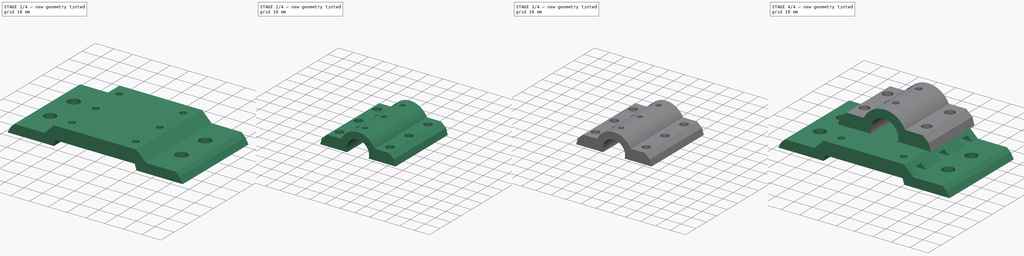
[diagram: build sequence overview — one tinted view per stage of 4, left to right]
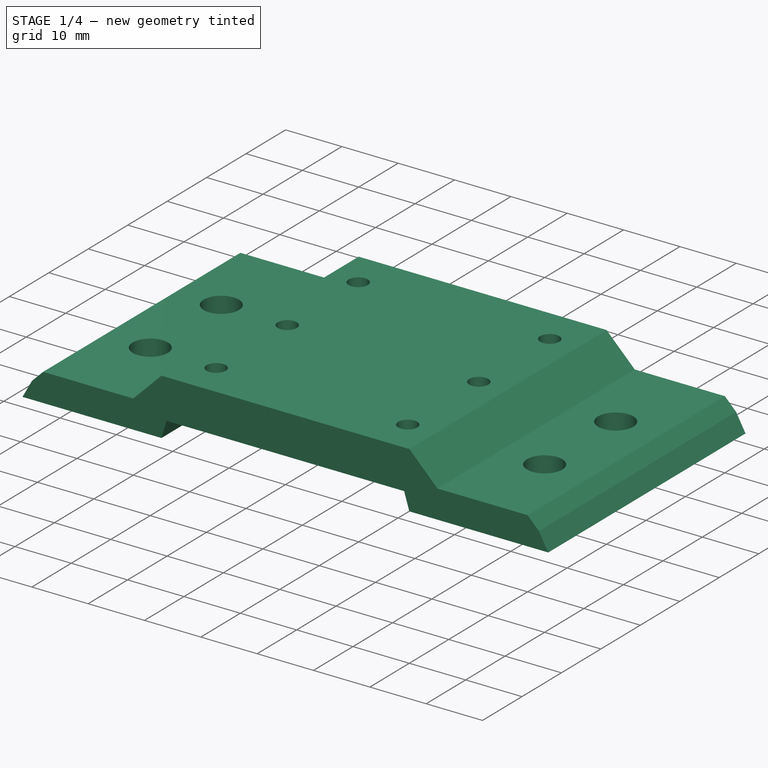
[diagram: stage 1 of 4 — iso view after this stage's code; geometry added in this stage tinted green]
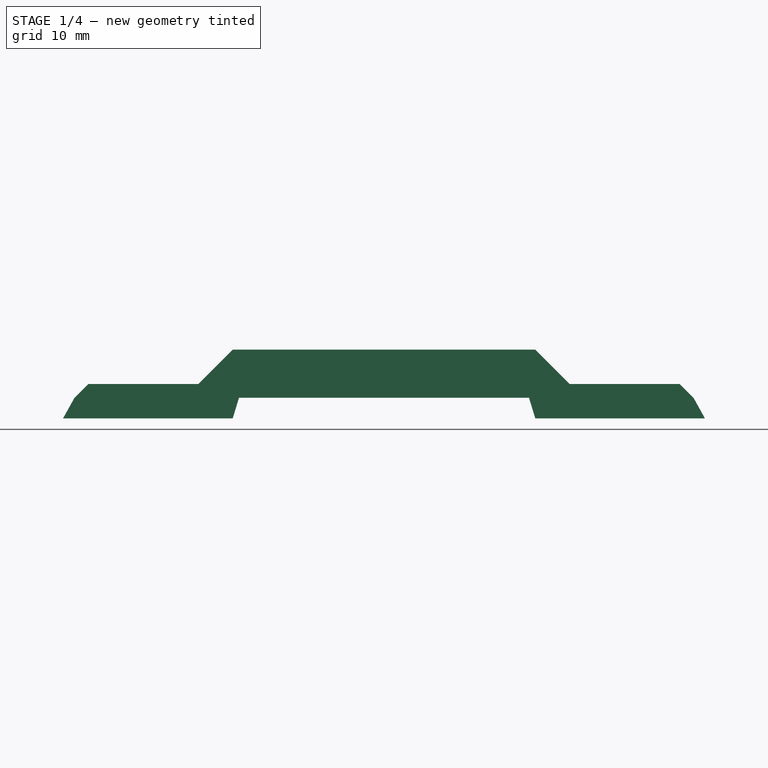
[diagram: stage 1 of 4 — front view after this stage's code; geometry added in this stage tinted green]
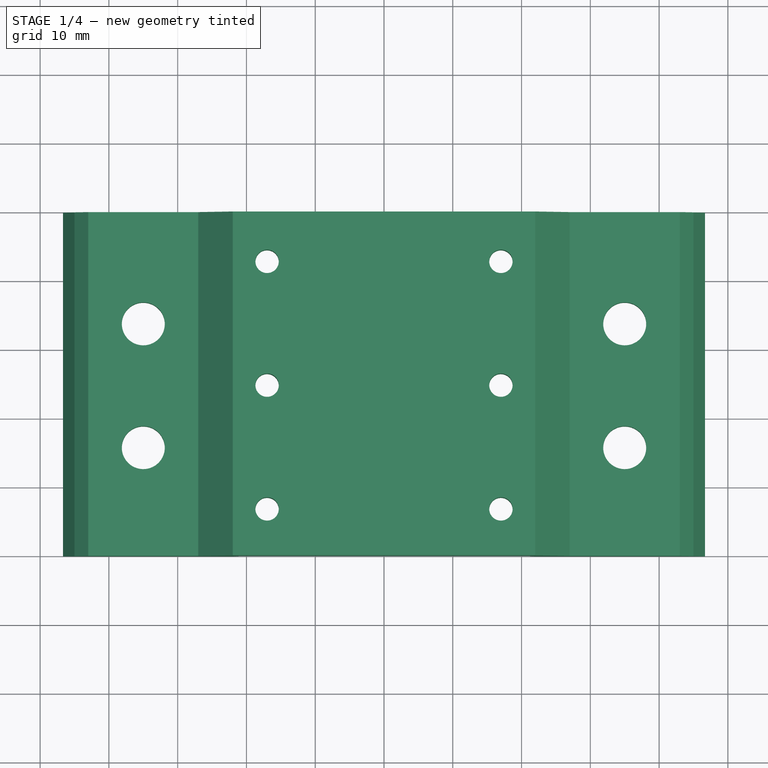
[diagram: stage 1 of 4 — top view after this stage's code; geometry added in this stage tinted green]
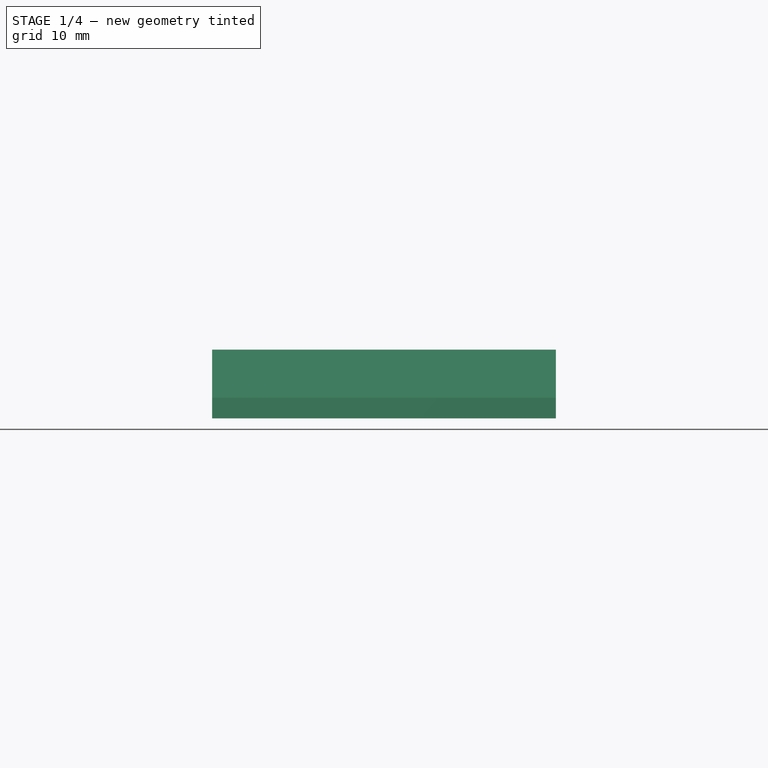
[diagram: stage 1 of 4 — right view after this stage's code; geometry added in this stage tinted green]
FCSTD DOCUMENT  (FreeCAD 0.18R16146 (Git))
Label: toolholder
License: All rights reserved
LicenseURL: http://en.wikipedia.org/wiki/All_rights_reserved
objects: Sketcher::SketchObject×11, PartDesign::Pocket×7, PartDesign::Body×5, PartDesign::FeatureBase×4, PartDesign::Pad×1
note: 36 computed .brp shape members not serialized (recipe doc carries the construction recipe); baked Part::Feature solids carry a one-line shape summary decoded from their .brp

FEATURE [Sketcher::SketchObject] Sketch005
  AttachmentOffset = pos=(0,0,5) rot=(0,0,1;0rad)
  MapMode = 5
  Placement = pos=(0,0,5) rot=(0,0,1;0rad)
  Support = -> [XY_Plane]
  sketch-geometry (49):
    g0: LineSegment StartX=-15.3 StartY=-4.30551 StartZ=0 EndX=-18.7 EndY=-4.30551 EndZ=0
    g1: LineSegment StartX=-18.7 StartY=-10.1945 StartZ=0 EndX=-15.3 EndY=-10.1945 EndZ=0
    g2: LineSegment StartX=-15.3 StartY=-10.1945 StartZ=0 EndX=-13.6 EndY=-7.25 EndZ=0
    g3: LineSegment StartX=-13.6 StartY=-7.25 StartZ=0 EndX=-15.3 EndY=-4.30551 EndZ=0
    g4: Circle [constr] CenterX=-17 CenterY=-7.25 CenterZ=0 NormalX=0 NormalY=0 NormalZ=1 AngleXU=0 Radius=3.4
    g5: LineSegment StartX=-13.6 StartY=-25.25 StartZ=0 EndX=-15.3 EndY=-22.3055 EndZ=0
    g6: LineSegment StartX=-15.3 StartY=-22.3055 StartZ=0 EndX=-18.7 EndY=-22.3055 EndZ=0
    g7: LineSegment StartX=-18.7 StartY=-28.1945 StartZ=0 EndX=-15.3 EndY=-28.1945 EndZ=0
    g8: LineSegment StartX=-15.3 StartY=-28.1945 StartZ=0 EndX=-13.6 EndY=-25.25 EndZ=0
    g9: Circle [constr] CenterX=-17 CenterY=-25.25 CenterZ=0 NormalX=0 NormalY=0 NormalZ=1 AngleXU=0 Radius=3.4
    g10: LineSegment StartX=-13.6 StartY=-43.25 StartZ=0 EndX=-15.3 EndY=-40.3055 EndZ=0
    g11: LineSegment StartX=-15.3 StartY=-40.3055 StartZ=0 EndX=-18.7 EndY=-40.3055 EndZ=0
    g12: LineSegment StartX=-18.7 StartY=-46.1945 StartZ=0 EndX=-15.3 EndY=-46.1945 EndZ=0
    g13: LineSegment StartX=-15.3 StartY=-46.1945 StartZ=0 EndX=-13.6 EndY=-43.25 EndZ=0
    g14: Circle [constr] CenterX=-17 CenterY=-43.25 CenterZ=0 NormalX=0 NormalY=0 NormalZ=1 AngleXU=0 Radius=3.4
    g15: LineSegment StartX=13.6 StartY=-7.25 StartZ=0 EndX=15.3 EndY=-10.1945 EndZ=0
    g16: LineSegment StartX=15.3 StartY=-10.1945 StartZ=0 EndX=18.7 EndY=-10.1945 EndZ=0
    g17: LineSegment StartX=18.7 StartY=-4.30551 StartZ=0 EndX=15.3 EndY=-4.30551 EndZ=0
    g18: LineSegment StartX=15.3 StartY=-4.30551 StartZ=0 EndX=13.6 EndY=-7.25 EndZ=0
    g19: Circle [constr] CenterX=17 CenterY=-7.25 CenterZ=0 NormalX=0 NormalY=0 NormalZ=1 AngleXU=0 Radius=3.4
    g20: LineSegment StartX=13.6 StartY=-25.25 StartZ=0 EndX=15.3 EndY=-28.1945 EndZ=0
    g21: LineSegment StartX=15.3 StartY=-28.1945 StartZ=0 EndX=18.7 EndY=-28.1945 EndZ=0
    g22: LineSegment StartX=18.7 StartY=-22.3055 StartZ=0 EndX=15.3 EndY=-22.3055 EndZ=0
    g23: LineSegment StartX=15.3 StartY=-22.3055 StartZ=0 EndX=13.6 EndY=-25.25 EndZ=0
    g24: Circle [constr] CenterX=17 CenterY=-25.25 CenterZ=0 NormalX=0 NormalY=0 NormalZ=1 AngleXU=0 Radius=3.4
    g25: LineSegment StartX=13.6 StartY=-43.25 StartZ=0 EndX=15.3 EndY=-46.1945 EndZ=0
    g26: LineSegment StartX=15.3 StartY=-46.1945 StartZ=0 EndX=18.7 EndY=-46.1945 EndZ=0
    g27: LineSegment StartX=18.7 StartY=-40.3055 StartZ=0 EndX=15.3 EndY=-40.3055 EndZ=0
    g28: LineSegment StartX=15.3 StartY=-40.3055 StartZ=0 EndX=13.6 EndY=-43.25 EndZ=0
    g29: Circle [constr] CenterX=17 CenterY=-43.25 CenterZ=0 NormalX=0 NormalY=0 NormalZ=1 AngleXU=0 Radius=3.4
    g30: GeomPoint X=0 Y=-25.25 Z=0
    g31: LineSegment StartX=-18.7 StartY=-4.30551 StartZ=0 EndX=-27.2 EndY=-4.30551 EndZ=0
    g32: LineSegment StartX=-27.2 StartY=-4.30551 StartZ=0 EndX=-27.2 EndY=-10.1945 EndZ=0
    g33: LineSegment StartX=-27.2 StartY=-10.1945 StartZ=0 EndX=-18.7 EndY=-10.1945 EndZ=0
    g34: LineSegment StartX=-18.7 StartY=-22.3055 StartZ=0 EndX=-27.2 EndY=-22.3055 EndZ=0
    g35: LineSegment StartX=-27.2 StartY=-22.3055 StartZ=0 EndX=-27.2 EndY=-28.1945 EndZ=0
    g36: LineSegment StartX=-27.2 StartY=-28.1945 StartZ=0 EndX=-18.7 EndY=-28.1945 EndZ=0
    g37: LineSegment StartX=-18.7 StartY=-40.3055 StartZ=0 EndX=-27.2 EndY=-40.3055 EndZ=0
    g38: LineSegment StartX=-18.7 StartY=-46.1945 StartZ=0 EndX=-27.2 EndY=-46.1945 EndZ=0
    g39: LineSegment StartX=-27.2 StartY=-40.3055 StartZ=0 EndX=-27.2 EndY=-46.1945 EndZ=0
    g40: LineSegment StartX=18.7 StartY=-4.30551 StartZ=0 EndX=27.2 EndY=-4.30551 EndZ=0
    g41: LineSegment StartX=27.2 StartY=-4.30551 StartZ=0 EndX=27.2 EndY=-10.1945 EndZ=0
    g42: LineSegment StartX=18.7 StartY=-10.1945 StartZ=0 EndX=27.2 EndY=-10.1945 EndZ=0
    g43: LineSegment StartX=18.7 StartY=-22.3055 StartZ=0 EndX=27.2 EndY=-22.3055 EndZ=0
    g44: LineSegment StartX=18.7 StartY=-28.1945 StartZ=0 EndX=27.2 EndY=-28.1945 EndZ=0
    g45: LineSegment StartX=27.2 StartY=-22.3055 StartZ=0 EndX=27.2 EndY=-28.1945 EndZ=0
    g46: LineSegment StartX=18.7 StartY=-40.3055 StartZ=0 EndX=27.2 EndY=-40.3055 EndZ=0
    g47: LineSegment StartX=18.7 StartY=-46.1945 StartZ=0 EndX=27.2 EndY=-46.1945 EndZ=0
    g48: LineSegment StartX=27.2 StartY=-46.1945 StartZ=0 EndX=27.2 EndY=-40.3055 EndZ=0
  constraints (146):
    c: Coincident(g1,g2)
    c: Coincident(g2,g3)
    c: Coincident(g3,g0)
    c: Equal(g0,g1)
    c: Equal(g0,g2)
    c: Equal(g0,g3)
    c: PointOnObject(g0,g4)
    c: PointOnObject(g1,g4)
    c: PointOnObject(g1,g4)
    c: PointOnObject(g2,g4)
    c: PointOnObject(g3,g4)
    c: Coincident(g5,g6)
    c: Coincident(g7,g8)
    c: Coincident(g8,g5)
    c: Equal(g5,g6)
    c: Equal(g5,g7)
    c: Equal(g5,g8)
    c: PointOnObject(g5,g9)
    c: PointOnObject(g6,g9)
    c: PointOnObject(g7,g9)
    c: PointOnObject(g7,g9)
    c: PointOnObject(g8,g9)
    c: Coincident(g10,g11)
    c: Coincident(g12,g13)
    c: Coincident(g13,g10)
    c: Equal(g10,g11)
    c: Equal(g10,g12)
    c: Equal(g10,g13)
    c: PointOnObject(g10,g14)
    c: PointOnObject(g11,g14)
    c: PointOnObject(g12,g14)
    c: PointOnObject(g12,g14)
    c: PointOnObject(g13,g14)
    c: Coincident(g15,g16)
    c: Coincident(g17,g18)
    c: Coincident(g18,g15)
    c: Equal(g15,g16)
    c: Equal(g15,g17)
    c: Equal(g15,g18)
    c: PointOnObject(g15,g19)
    c: PointOnObject(g16,g19)
    c: PointOnObject(g17,g19)
    c: PointOnObject(g17,g19)
    c: PointOnObject(g18,g19)
    c: Coincident(g20,g21)
    c: Coincident(g22,g23)
    c: Coincident(g23,g20)
    c: Equal(g20,g21)
    c: Equal(g20,g22)
    c: Equal(g20,g23)
    c: PointOnObject(g20,g24)
    c: PointOnObject(g21,g24)
    c: PointOnObject(g22,g24)
    c: PointOnObject(g22,g24)
    c: PointOnObject(g23,g24)
    c: Coincident(g25,g26)
    c: Coincident(g27,g28)
    c: Coincident(g28,g25)
    c: Equal(g25,g26)
    c: Equal(g25,g27)
    c: Equal(g25,g28)
    c: PointOnObject(g25,g29)
    c: PointOnObject(g26,g29)
    c: PointOnObject(g27,g29)
    c: PointOnObject(g27,g29)
    c: PointOnObject(g28,g29)
    c: DistanceX(g-1,g30) = 0
    c: DistanceY(g30,g-1) = 25.25
    c: DistanceY(g30,g9) = 0
    c: Horizontal(g6)
    c: Horizontal(g11)
    c: Horizontal(g22)
    c: Horizontal(g27)
    c: Horizontal(g0)
    c: Horizontal(g17)
    c: DistanceY(g19,g4) = 0
    c: DistanceY(g24,g9) = 0
    c: DistanceY(g29,g14) = 0
    c: DistanceX(g9,g14) = 0
    c: DistanceX(g9,g4) = 0
    c: DistanceX(g24,g19) = 0
    c: DistanceX(g29,g24) = 0
    c: Diameter(g4) = 6.8
    c: Equal(g19,g4)
    c: Equal(g24,g4)
    c: Equal(g29,g4)
    c: Equal(g14,g4)
    c: Equal(g9,g4)
    c: DistanceX(g9,g30) = 17
    c: DistanceX(g30,g24) = 17
    c: DistanceY(g9,g4) = 18
    c: DistanceY(g14,g9) = 18
    c: Coincident(g31,g0)
    c: Horizontal(g31)
    c: Coincident(g32,g31)
    c: Vertical(g32)
    c: Coincident(g33,g32)
    c: Horizontal(g33)
    c: DistanceX(g31,g4) = 10.2
    c: Horizontal(g1)
    c: Coincident(g1,g33)
    c: Horizontal(g34)
    c: Vertical(g35)
    c: Horizontal(g36)
    c: DistanceX(g34,g32) = 0
    c: Coincident(g34,g35)
    c: Coincident(g35,g36)
    c: Horizontal(g7)
    c: Coincident(g6,g34)
    c: Coincident(g7,g36)
    c: Coincident(g37,g11)
    c: Horizontal(g37)
    c: Horizontal(g38)
    c: Coincident(g39,g37)
    c: Coincident(g39,g38)
    c: Vertical(g39)
    c: DistanceX(g37,g35) = 0
    c: Horizontal(g12)
    c: Coincident(g12,g38)
    c: Horizontal(g40)
    c: Coincident(g41,g40)
    c: Vertical(g41)
    c: Coincident(g42,g16)
    c: Coincident(g42,g41)
    c: Horizontal(g42)
    c: DistanceX(g19,g40) = 10.2
    c: Horizontal(g16)
    c: Coincident(g17,g40)
    c: Horizontal(g43)
    c: Coincident(g44,g21)
    c: Horizontal(g44)
    c: Coincident(g45,g43)
    c: Coincident(g45,g44)
    c: DistanceX(g41,g43) = 0
    c: Horizontal(g21)
    c: Vertical(g45)
    c: Coincident(g22,g43)
    c: Horizontal(g46)
    c: Coincident(g47,g26)
    c: Horizontal(g47)
    c: Coincident(g48,g47)
    c: Coincident(g48,g46)
    c: Vertical(g48)
    c: DistanceX(g44,g46) = 0
    c: Horizontal(g26)
    c: Coincident(g27,g46)
FEATURE [Sketcher::SketchObject] Sketch006
  MapMode = 5
  Placement = pos=(0,0,0) rot=(1,0,0;1.5708rad)
  Support = -> [XZ_Plane001]
  sketch-geometry (5):
    g0: LineSegment StartX=-45 StartY=26 StartZ=0 EndX=45 EndY=26 EndZ=0
    g1: LineSegment StartX=45 StartY=26 StartZ=0 EndX=45 EndY=11 EndZ=0
    g2: LineSegment StartX=45 StartY=11 StartZ=0 EndX=-45 EndY=11 EndZ=0
    g3: LineSegment StartX=-45 StartY=11 StartZ=0 EndX=-45 EndY=26 EndZ=0
    g4: GeomPoint X=0 Y=0 Z=0
  constraints (14):
    c: Coincident(g0,g1)
    c: Coincident(g1,g2)
    c: Coincident(g2,g3)
    c: Coincident(g3,g0)
    c: Horizontal(g0)
    c: Horizontal(g2)
    c: Vertical(g1)
    c: Vertical(g3)
    c: DistanceX(g-1,g4) = 0
    c: DistanceY(g-1,g4) = 0
    c: DistanceX(g0,g0) = 90
    c: DistanceX(g2,g4) = 45
    c: DistanceY(g4,g1) = 11
    c: DistanceY(g3,g3) = 15
FEATURE [Sketcher::SketchObject] Sketch001
  AttachmentOffset = pos=(0,-9,0) rot=(0,0,1;0rad)
  MapMode = 5
  Placement = pos=(0,2e-15,-9) rot=(1,0,0;1.5708rad)
  Support = -> [XZ_Plane]
  sketch-geometry (17):
    g0: LineSegment StartX=-21.0828 StartY=12 StartZ=0 EndX=21.0828 EndY=12 EndZ=0
    g1: GeomPoint X=0 Y=0 Z=0
    g2: LineSegment StartX=-45 StartY=12 StartZ=0 EndX=-46.667 EndY=9 EndZ=0
    g3: LineSegment StartX=-46.667 StartY=9 StartZ=0 EndX=-22 EndY=9 EndZ=0
    g4: GeomPoint X=-35 Y=0 Z=0
    g5: LineSegment StartX=-21.0828 StartY=12 StartZ=0 EndX=-22 EndY=9 EndZ=0
    g6: LineSegment StartX=27 StartY=14 StartZ=0 EndX=43 EndY=14 EndZ=0
    g7: LineSegment StartX=-27 StartY=14 StartZ=0 EndX=-43 EndY=14 EndZ=0
    g8: LineSegment StartX=-45 StartY=12 StartZ=0 EndX=-43 EndY=14 EndZ=0
    g9: LineSegment StartX=45 StartY=12 StartZ=0 EndX=46.667 EndY=9 EndZ=0
    g10: LineSegment StartX=22 StartY=9 StartZ=0 EndX=21.0828 EndY=12 EndZ=0
    g11: GeomPoint X=35 Y=0 Z=0
    g12: LineSegment StartX=43 StartY=14 StartZ=0 EndX=45 EndY=12 EndZ=0
    g13: LineSegment StartX=22 StartY=9 StartZ=0 EndX=46.667 EndY=9 EndZ=0
    g14: LineSegment StartX=-22 StartY=19 StartZ=0 EndX=-27 EndY=14 EndZ=0
    g15: LineSegment StartX=22 StartY=19 StartZ=0 EndX=27 EndY=14 EndZ=0
    g16: LineSegment StartX=-22 StartY=19 StartZ=0 EndX=22 EndY=19 EndZ=0
  constraints (48):
    c: Horizontal(g0)
    c: DistanceX(g-1,g1) = 0
    c: DistanceY(g-1,g1) = 0
    c: DistanceX(g2,g1) = 45
    c: Coincident(g3,g2)
    c: Horizontal(g3)
    c: DistanceY(g1,g2) = 12
    c: DistanceY(g2,g2) = 3
    c: DistanceY(g1,g4) = 0
    c: DistanceX(g4,g1) = 35
    c: Coincident(g5,g3)
    c: Horizontal(g6)
    c: DistanceY(g6,g7) = 0
    c: Horizontal(g7)
    c: Coincident(g0,g5)
    c: DistanceX(g4,g7) = 8
    c: Coincident(g8,g2)
    c: Coincident(g7,g8)
    c: Angle(g8,g7) = 2.35619
    c: DistanceX(g2,g4) = 11.667
    c: DistanceY(g0,g2) = 0
    c: DistanceY(g9,g2) = 0
    c: DistanceY(g11,g1) = 0
    c: DistanceX(g1,g11) = 35
    c: Coincident(g12,g6)
    c: Coincident(g12,g9)
    c: Coincident(g0,g10)
    c: DistanceY(g9,g0) = 0
    c: DistanceX(g11,g9) = 11.667
    c: DistanceY(g9,g6) = 2
    c: DistanceY(g10,g9) = 0
    c: DistanceX(g6,g9) = 2
    c: Coincident(g13,g10)
    c: Coincident(g13,g9)
    c: Equal(g3,g13)
    c: DistanceX(g6,g11) = 8
    c: Coincident(g14,g7)
    c: DistanceX(g4,g3) = 13
    c: DistanceX(g1,g9) = 45
    c: DistanceY(g7,g14) = 5
    c: Coincident(g6,g15)
    c: DistanceY(g14,g15) = 0
    c: Angle(g13,g10) = 1.8675
    c: Angle(g5,g3) = 1.8675
    c: DistanceX(g3,g14) = 0
    c: DistanceX(g10,g15) = 0
    c: Coincident(g16,g14)
    c: Coincident(g16,g15)
FEATURE [PartDesign::Pad] Pad
  Length = 50
  Length2 = 100
  Placement = pos=(0,0,0) rot=(1,0,0;1.5708rad)
  Profile = -> Sketch001
  Type = 0
FEATURE [Sketcher::SketchObject] Sketch003
  MapMode = 5
  Support = -> [XY_Plane]
  sketch-geometry (7):
    g0: GeomPoint X=0 Y=-25.25 Z=0
    g1: Circle CenterX=-17 CenterY=-7.25 CenterZ=0 NormalX=0 NormalY=0 NormalZ=1 AngleXU=0 Radius=1.7
    g2: Circle CenterX=-17 CenterY=-25.25 CenterZ=0 NormalX=0 NormalY=0 NormalZ=1 AngleXU=0 Radius=1.7
    g3: Circle CenterX=-17 CenterY=-43.25 CenterZ=0 NormalX=0 NormalY=0 NormalZ=1 AngleXU=0 Radius=1.7
    g4: Circle CenterX=17 CenterY=-7.25 CenterZ=0 NormalX=0 NormalY=0 NormalZ=1 AngleXU=0 Radius=1.7
    g5: Circle CenterX=17 CenterY=-25.25 CenterZ=0 NormalX=0 NormalY=0 NormalZ=1 AngleXU=0 Radius=1.7
    g6: Circle CenterX=17 CenterY=-43.25 CenterZ=0 NormalX=0 NormalY=0 NormalZ=1 AngleXU=0 Radius=1.7
  constraints (20):
    c: DistanceX(g-1,g0) = 0
    c: DistanceY(g0,g-1) = 25.25
    c: Diameter(g1) = 3.4
    c: Equal(g1,g4)
    c: Equal(g1,g2)
    c: Equal(g1,g5)
    c: Equal(g1,g3)
    c: Equal(g1,g6)
    c: DistanceY(g1,g4) = 0
    c: DistanceY(g5,g2) = 0
    c: DistanceY(g3,g6) = 0
    c: DistanceX(g1,g2) = 0
    c: DistanceX(g3,g2) = 0
    c: DistanceX(g5,g6) = 0
    c: DistanceX(g5,g4) = 0
    c: DistanceY(g0,g2) = 0
    c: DistanceY(g2,g1) = 18
    c: DistanceY(g3,g2) = 18
    c: DistanceX(g2,g0) = 17
    c: DistanceX(g0,g5) = 17
FEATURE [Sketcher::SketchObject] Sketch002
  MapMode = 5
  Support = -> [XY_Plane]
  sketch-geometry (5):
    g0: GeomPoint X=0 Y=-25.25 Z=0
    g1: Circle CenterX=-35 CenterY=-16.25 CenterZ=0 NormalX=0 NormalY=0 NormalZ=1 AngleXU=0 Radius=3.125
    g2: Circle CenterX=-35 CenterY=-34.25 CenterZ=0 NormalX=0 NormalY=0 NormalZ=1 AngleXU=0 Radius=3.125
    g3: Circle CenterX=35 CenterY=-16.25 CenterZ=0 NormalX=0 NormalY=0 NormalZ=1 AngleXU=0 Radius=3.125
    g4: Circle CenterX=35 CenterY=-34.25 CenterZ=0 NormalX=0 NormalY=0 NormalZ=1 AngleXU=0 Radius=3.125
  constraints (14):
    c: DistanceX(g-1,g0) = 0
    c: DistanceY(g0,g-1) = 25.25
    c: DistanceY(g1,g3) = 0
    c: DistanceY(g4,g2) = 0
    c: DistanceX(g2,g1) = 0
    c: DistanceX(g4,g3) = 0
    c: DistanceX(g1,g3) = 70
    c: DistanceX(g1,g0) = 35
    c: Diameter(g1) = 6.25
    c: Equal(g1,g2)
    c: Equal(g1,g3)
    c: Equal(g1,g4)
    c: DistanceY(g2,g1) = 18
    c: DistanceY(g0,g1) = 9
FEATURE [PartDesign::Pocket] Pocket001
  BaseFeature = -> Pad
  Length = 5
  Length2 = 100
  Placement = pos=(0,0,0) rot=(1,0,0;1.5708rad)
  Profile = -> Sketch002
  Reversed = true
  Type = 1
FEATURE [PartDesign::Pocket] Pocket002
  BaseFeature = -> Pocket001
  Length = 5
  Length2 = 100
  Placement = pos=(0,0,0) rot=(1,0,0;1.5708rad)
  Profile = -> Sketch003
  Reversed = true
  Type = 1
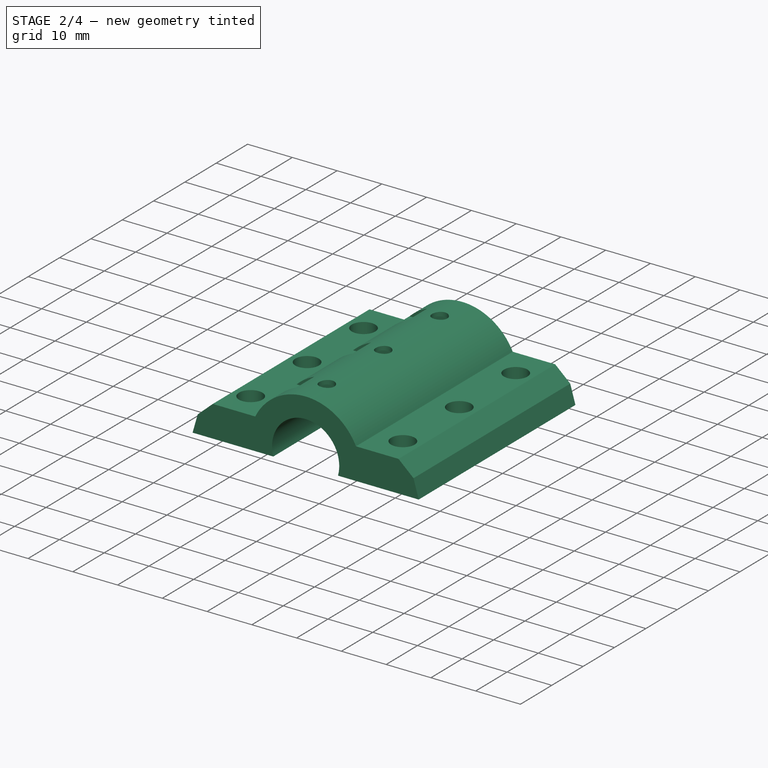
[diagram: stage 2 of 4 — iso view after this stage's code; geometry added in this stage tinted green]
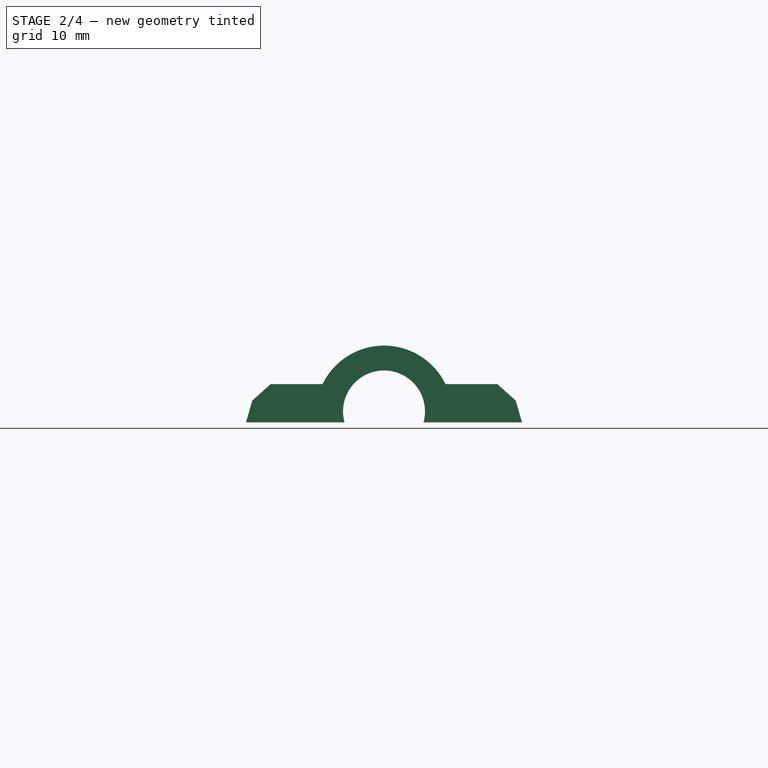
[diagram: stage 2 of 4 — front view after this stage's code; geometry added in this stage tinted green]
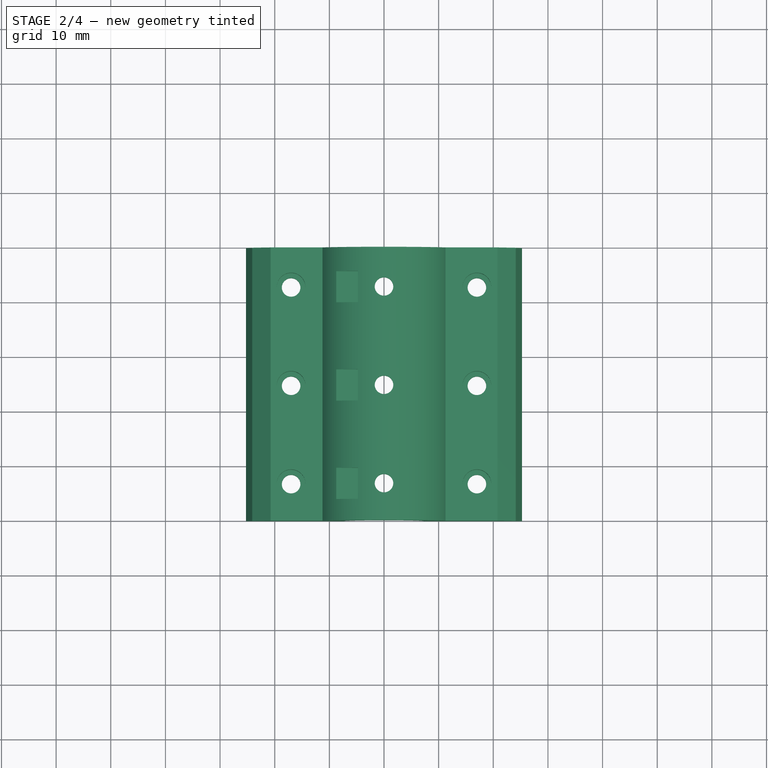
[diagram: stage 2 of 4 — top view after this stage's code; geometry added in this stage tinted green]
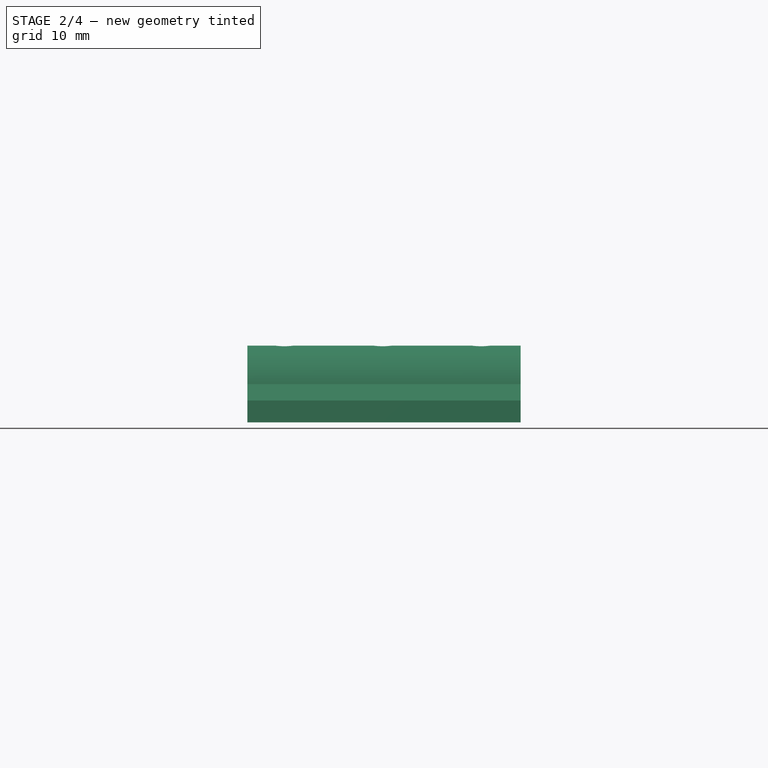
[diagram: stage 2 of 4 — right view after this stage's code; geometry added in this stage tinted green]
FEATURE [PartDesign::Pocket] Pocket004
  BaseFeature = -> Pocket002
  Length = 2.65
  Length2 = 100
  Placement = pos=(0,0,0) rot=(1,0,0;1.5708rad)
  Profile = -> Sketch005
  Reversed = true
  Type = 0
FEATURE [PartDesign::Body] Body001  label="toolholder-bottom"
  BaseFeature = -> Body
  Group = -> [Clone,Sketch006,Pocket005]
  Origin = -> Origin001
  Tip = -> Pocket005
FEATURE [PartDesign::FeatureBase] Clone001
  BaseFeature = -> Body
FEATURE [PartDesign::Pocket] Pocket006
  BaseFeature = -> Clone001
  Length = 5
  Length2 = 100
  Profile = -> Sketch007
  Reversed = true
  Type = 1
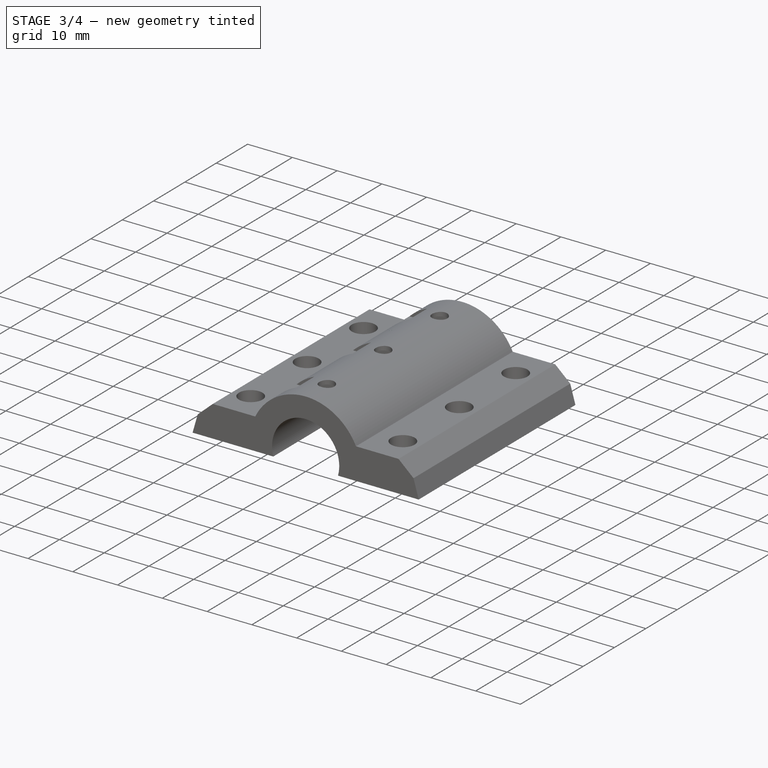
[diagram: stage 3 of 4 — iso view after this stage's code; geometry added in this stage tinted green]
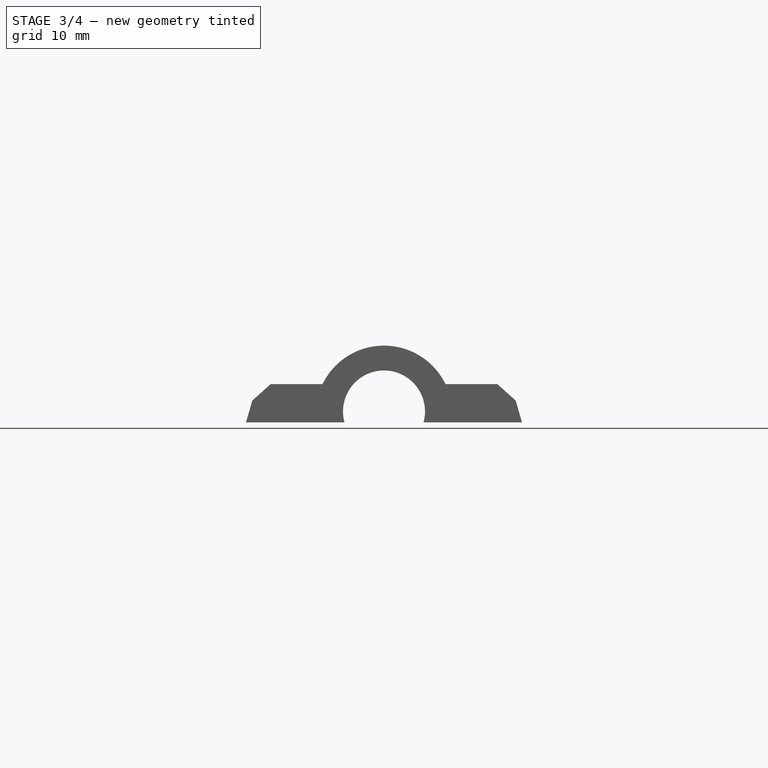
[diagram: stage 3 of 4 — front view after this stage's code; geometry added in this stage tinted green]
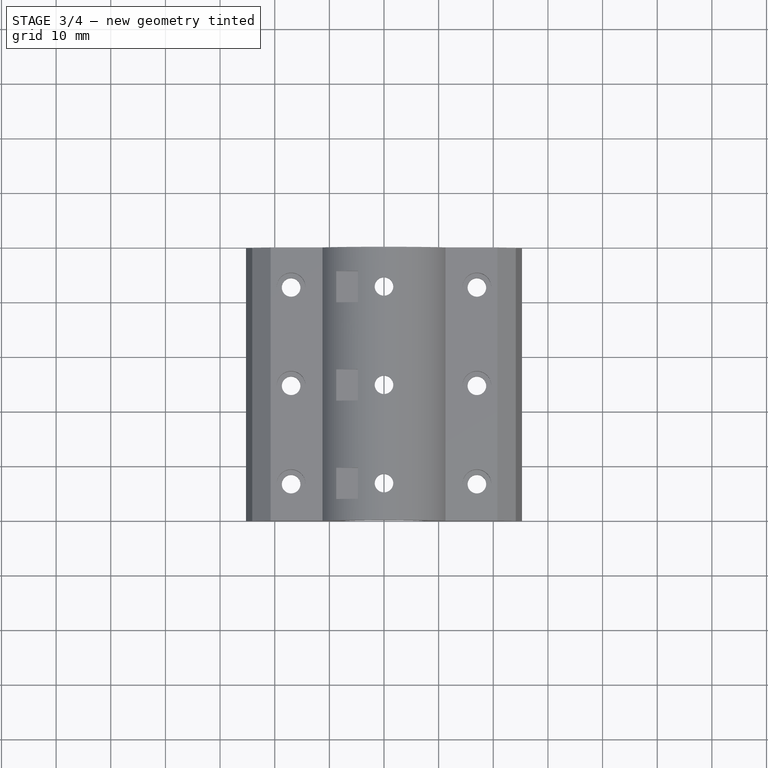
[diagram: stage 3 of 4 — top view after this stage's code; geometry added in this stage tinted green]
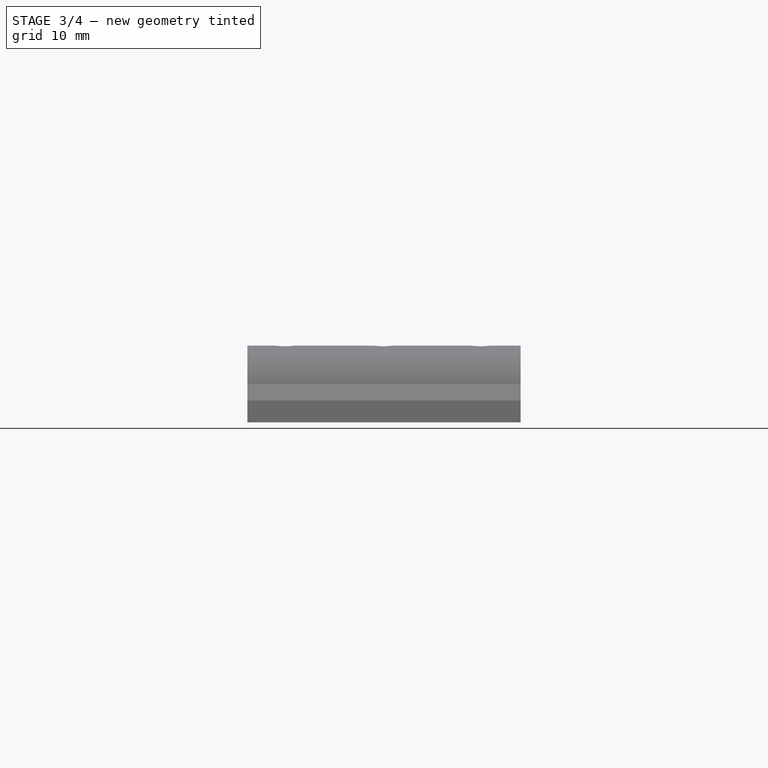
[diagram: stage 3 of 4 — right view after this stage's code; geometry added in this stage tinted green]
FEATURE [PartDesign::Body] Body002  label="toolholder-top"
  BaseFeature = -> Body
  Group = -> [Clone001,Sketch007,Pocket006]
  Origin = -> Origin002
  Tip = -> Pocket006
FEATURE [PartDesign::FeatureBase] Clone002
  BaseFeature = -> Body002
FEATURE [PartDesign::Body] Body003  label="toolholder-top-2up"
  Group = -> [Clone002,Sketch012,Pocket009]
  Origin = -> Origin003
  Tip = -> Pocket009
FEATURE [PartDesign::FeatureBase] Clone003
  BaseFeature = -> Body002
FEATURE [Sketcher::SketchObject] Sketch013
  AttachmentOffset = pos=(0,0,30) rot=(0,0,1;0rad)
  MapMode = 5
  Placement = pos=(30,-6.7e-15,6.7e-15) rot=(0.57735,0.57735,0.57735;2.0944rad)
  Support = -> [YZ_Plane004]
  sketch-geometry (4):
    g0: LineSegment StartX=-56 StartY=40 StartZ=0 EndX=-16 EndY=40 EndZ=0
    g1: LineSegment StartX=-16 StartY=0 StartZ=0 EndX=-56 EndY=0 EndZ=0
    g2: LineSegment StartX=-56 StartY=0 StartZ=0 EndX=-56 EndY=40 EndZ=0
    g3: LineSegment StartX=-16 StartY=40 StartZ=0 EndX=-16 EndY=0 EndZ=0
  constraints (12):
    c: Coincident(g1,g2)
    c: Coincident(g2,g0)
    c: Horizontal(g0)
    c: Horizontal(g1)
    c: Vertical(g2)
    c: DistanceY(g2,g2) = 40
    c: DistanceX(g0,g0) = 40
    c: Coincident(g3,g1)
    c: Vertical(g3)
    c: Coincident(g0,g3)
    c: DistanceX(g1,g-1) = 16
    c: PointOnObject(g1,g-1)
FEATURE [PartDesign::Pocket] Pocket010
  BaseFeature = -> Clone003
  Length = 5
  Length2 = 100
  Profile = -> Sketch013
  Type = 1
FEATURE [PartDesign::Body] Body004  label="toolholder-top-1up"
  Group = -> [Clone003,Sketch013,Pocket010]
  Origin = -> Origin004
  Tip = -> Pocket010
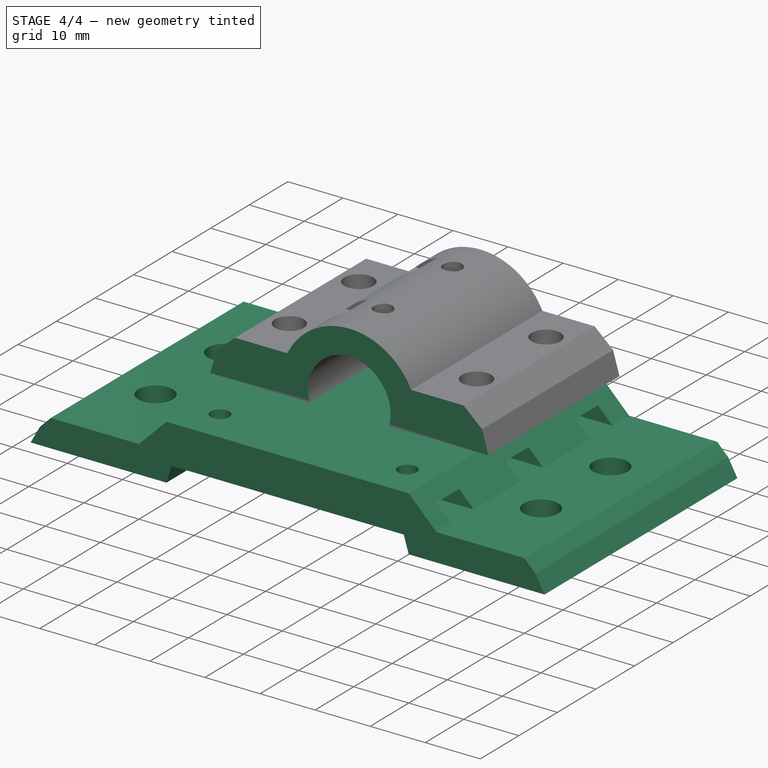
[diagram: stage 4 of 4 — iso view after this stage's code; geometry added in this stage tinted green]
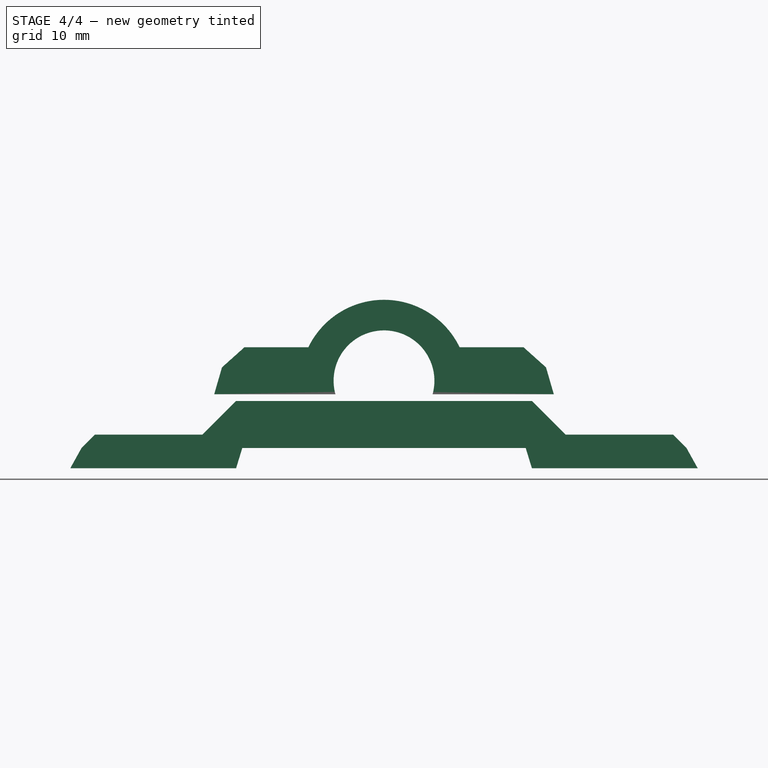
[diagram: stage 4 of 4 — front view after this stage's code; geometry added in this stage tinted green]
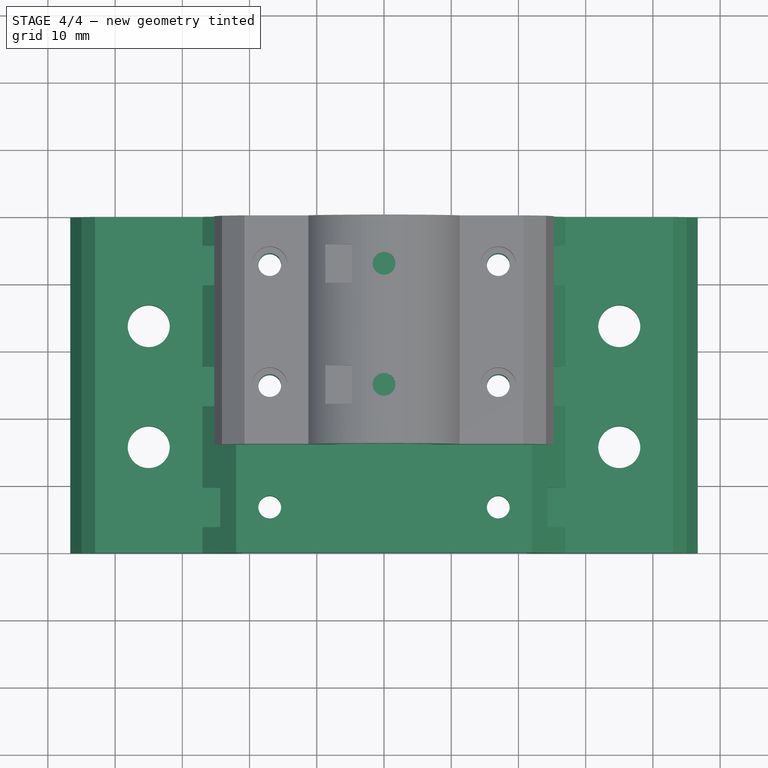
[diagram: stage 4 of 4 — top view after this stage's code; geometry added in this stage tinted green]
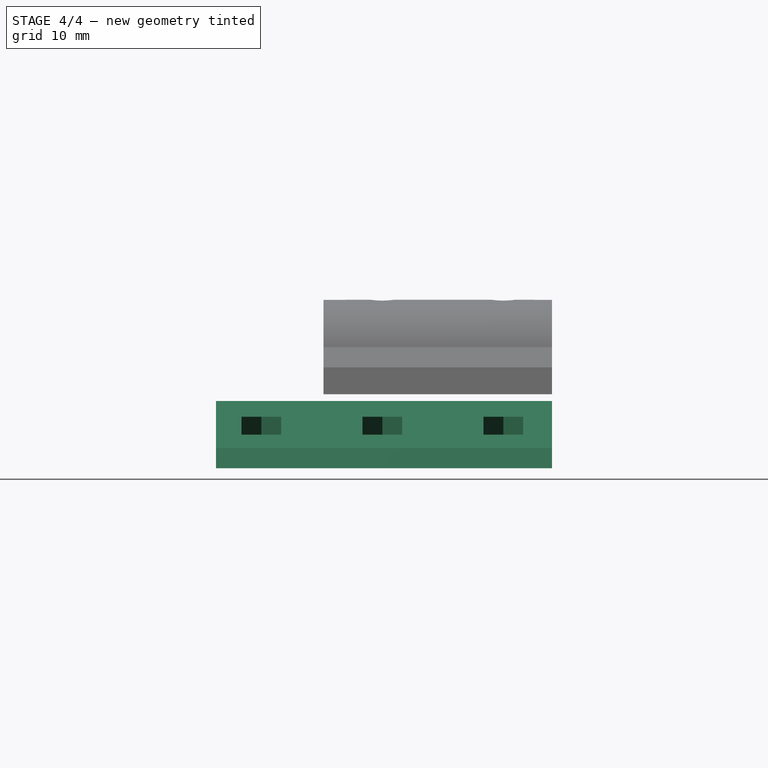
[diagram: stage 4 of 4 — right view after this stage's code; geometry added in this stage tinted green]
FEATURE [Sketcher::SketchObject] Sketch004
  AttachmentOffset = pos=(0,0,18) rot=(0,0,1;0rad)
  MapMode = 5
  Placement = pos=(0,0,18) rot=(0,0,1;0rad)
  Support = -> [XY_Plane]
  sketch-geometry (7):
    g0: GeomPoint X=0 Y=-25.25 Z=0
    g1: Circle CenterX=-17 CenterY=-7.25 CenterZ=0 NormalX=0 NormalY=0 NormalZ=1 AngleXU=0 Radius=2.625
    g2: Circle CenterX=17 CenterY=-25.25 CenterZ=0 NormalX=0 NormalY=0 NormalZ=1 AngleXU=0 Radius=2.625
    g3: Circle CenterX=-17 CenterY=-25.25 CenterZ=0 NormalX=0 NormalY=0 NormalZ=1 AngleXU=0 Radius=2.625
    g4: Circle CenterX=-17 CenterY=-43.25 CenterZ=0 NormalX=0 NormalY=0 NormalZ=1 AngleXU=0 Radius=2.625
    g5: Circle CenterX=17 CenterY=-43.25 CenterZ=0 NormalX=0 NormalY=0 NormalZ=1 AngleXU=0 Radius=2.625
    g6: Circle CenterX=17 CenterY=-7.25 CenterZ=0 NormalX=0 NormalY=0 NormalZ=1 AngleXU=0 Radius=2.625
  constraints (20):
    c: DistanceX(g-1,g0) = 0
    c: DistanceY(g0,g-1) = 25.25
    c: DistanceY(g3,g2) = 0
    c: DistanceY(g4,g5) = 0
    c: DistanceX(g1,g3) = 0
    c: DistanceX(g3,g4) = 0
    c: DistanceX(g5,g2) = 0
    c: Diameter(g1) = 5.25
    c: Equal(g1,g3)
    c: Equal(g1,g2)
    c: Equal(g1,g4)
    c: Equal(g1,g5)
    c: DistanceY(g3,g0) = 0
    c: DistanceX(g3,g0) = 17
    c: DistanceY(g4,g3) = 18
    c: DistanceX(g0,g2) = 17
    c: DistanceY(g3,g1) = 18
    c: Equal(g1,g6)
    c: DistanceY(g6,g1) = 0
    c: DistanceX(g2,g6) = 0
FEATURE [Sketcher::SketchObject] Sketch007
  AttachmentOffset = pos=(0,0,-26.5) rot=(0,0,1;0rad)
  MapMode = 5
  Placement = pos=(0,26.5,5.9e-15) rot=(1,0,0;1.5708rad)
  Support = -> [XZ_Plane002]
  sketch-geometry (4):
    g0: LineSegment StartX=-50 StartY=-13 StartZ=0 EndX=50 EndY=-13 EndZ=0
    g1: LineSegment StartX=50 StartY=-13 StartZ=0 EndX=50 EndY=11 EndZ=0
    g2: LineSegment StartX=50 StartY=11 StartZ=0 EndX=-50 EndY=11 EndZ=0
    g3: LineSegment StartX=-50 StartY=11 StartZ=0 EndX=-50 EndY=-13 EndZ=0
  constraints (12):
    c: Coincident(g0,g1)
    c: Coincident(g1,g2)
    c: Coincident(g2,g3)
    c: Coincident(g3,g0)
    c: Horizontal(g0)
    c: Horizontal(g2)
    c: Vertical(g1)
    c: Vertical(g3)
    c: DistanceX(g0,g0) = 100
    c: DistanceY(g1,g1) = 24
    c: DistanceY(g-1,g1) = 11
    c: DistanceX(g2,g-1) = 50
FEATURE [Sketcher::SketchObject] Sketch010
  AttachmentOffset = pos=(0,0,50) rot=(0,0,1;0rad)
  MapMode = 5
  Placement = pos=(0,0,50) rot=(0,0,1;0rad)
  Support = -> [XY_Plane]
  sketch-geometry (3):
    g0: Circle CenterX=0 CenterY=-25.25 CenterZ=0 NormalX=0 NormalY=0 NormalZ=1 AngleXU=0 Radius=1.7
    g1: Circle CenterX=0 CenterY=-7.25 CenterZ=0 NormalX=0 NormalY=0 NormalZ=1 AngleXU=0 Radius=1.7
    g2: Circle CenterX=0 CenterY=-43.25 CenterZ=0 NormalX=0 NormalY=0 NormalZ=1 AngleXU=0 Radius=1.7
  constraints (9):
    c: Diameter(g0) = 3.4
    c: DistanceX(g-1,g0) = 0
    c: DistanceY(g0,g-1) = 25.25
    c: Equal(g1,g0)
    c: DistanceX(g0,g1) = 0
    c: DistanceY(g0,g1) = 18
    c: DistanceX(g2,g0) = 0
    c: DistanceY(g2,g0) = 18
    c: Equal(g2,g0)
FEATURE [Sketcher::SketchObject] Sketch011
  AttachmentOffset = pos=(0,0,21.5) rot=(0,0,1;0rad)
  MapMode = 5
  Placement = pos=(0,0,21.5) rot=(0,0,1;0rad)
  Support = -> [XY_Plane]
  sketch-geometry (24):
    g0: LineSegment StartX=3.3 StartY=-7.25 StartZ=0 EndX=1.65 EndY=-4.39212 EndZ=0
    g1: LineSegment StartX=1.65 StartY=-4.39212 StartZ=0 EndX=-1.65 EndY=-4.39212 EndZ=0
    g2: LineSegment StartX=-1.65 StartY=-10.1079 StartZ=0 EndX=1.65 EndY=-10.1079 EndZ=0
    g3: LineSegment StartX=1.65 StartY=-10.1079 StartZ=0 EndX=3.3 EndY=-7.25 EndZ=0
    g4: Circle [constr] CenterX=0 CenterY=-7.25 CenterZ=0 NormalX=0 NormalY=0 NormalZ=1 AngleXU=0 Radius=3.3
    g5: LineSegment StartX=3.3 StartY=-25.25 StartZ=0 EndX=1.65 EndY=-22.3921 EndZ=0
    g6: LineSegment StartX=1.65 StartY=-22.3921 StartZ=0 EndX=-1.65 EndY=-22.3921 EndZ=0
    g7: LineSegment StartX=-1.65 StartY=-28.1079 StartZ=0 EndX=1.65 EndY=-28.1079 EndZ=0
    g8: LineSegment StartX=1.65 StartY=-28.1079 StartZ=0 EndX=3.3 EndY=-25.25 EndZ=0
    g9: Circle [constr] CenterX=0 CenterY=-25.25 CenterZ=0 NormalX=0 NormalY=0 NormalZ=1 AngleXU=0 Radius=3.3
    g10: LineSegment StartX=-1.65 StartY=-4.39212 StartZ=0 EndX=-11.65 EndY=-4.39212 EndZ=0
    g11: LineSegment StartX=-1.65 StartY=-10.1079 StartZ=0 EndX=-11.65 EndY=-10.1079 EndZ=0
    g12: LineSegment StartX=-11.65 StartY=-4.39212 StartZ=0 EndX=-11.65 EndY=-10.1079 EndZ=0
    g13: LineSegment StartX=-1.65 StartY=-22.3921 StartZ=0 EndX=-11.65 EndY=-22.3921 EndZ=0
    g14: LineSegment StartX=-1.65 StartY=-28.1079 StartZ=0 EndX=-11.65 EndY=-28.1079 EndZ=0
    g15: LineSegment StartX=-11.65 StartY=-22.3921 StartZ=0 EndX=-11.65 EndY=-28.1079 EndZ=0
    g16: LineSegment StartX=1.65 StartY=-40.3921 StartZ=0 EndX=-1.65 EndY=-40.3921 EndZ=0
    g17: LineSegment StartX=-1.65 StartY=-46.1079 StartZ=0 EndX=1.65 EndY=-46.1079 EndZ=0
    g18: LineSegment StartX=1.65 StartY=-46.1079 StartZ=0 EndX=3.3 EndY=-43.25 EndZ=0
    g19: LineSegment StartX=3.3 StartY=-43.25 StartZ=0 EndX=1.65 EndY=-40.3921 EndZ=0
    g20: Circle [constr] CenterX=0 CenterY=-43.25 CenterZ=0 NormalX=0 NormalY=0 NormalZ=1 AngleXU=0 Radius=3.3
    g21: LineSegment StartX=-1.65 StartY=-40.3921 StartZ=0 EndX=-11.65 EndY=-40.3921 EndZ=0
    g22: LineSegment StartX=-1.65 StartY=-46.1079 StartZ=0 EndX=-11.65 EndY=-46.1079 EndZ=0
    g23: LineSegment StartX=-11.65 StartY=-40.3921 StartZ=0 EndX=-11.65 EndY=-46.1079 EndZ=0
  constraints (72):
    c: Coincident(g0,g1)
    c: Coincident(g2,g3)
    c: Coincident(g3,g0)
    c: Equal(g0,g1)
    c: Equal(g0,g2)
    c: Equal(g0,g3)
    c: PointOnObject(g0,g4)
    c: PointOnObject(g1,g4)
    c: PointOnObject(g2,g4)
    c: PointOnObject(g2,g4)
    c: PointOnObject(g3,g4)
    c: Coincident(g5,g6)
    c: Coincident(g7,g8)
    c: Coincident(g8,g5)
    c: Equal(g5,g6)
    c: Equal(g5,g7)
    c: Equal(g5,g8)
    c: PointOnObject(g5,g9)
    c: PointOnObject(g6,g9)
    c: PointOnObject(g7,g9)
    c: PointOnObject(g7,g9)
    c: PointOnObject(g8,g9)
    c: DistanceX(g9,g4) = 0
    c: DistanceY(g9,g4) = 18
    c: DistanceY(g9,g-1) = 25.25
    c: Horizontal(g1)
    c: Horizontal(g6)
    c: Diameter(g4) = 6.6
    c: Equal(g9,g4)
    c: Coincident(g10,g1)
    c: Horizontal(g10)
    c: Horizontal(g11)
    c: Coincident(g12,g10)
    c: Coincident(g12,g11)
    c: Vertical(g12)
    c: DistanceX(g10,g10) = 10
    c: DistanceX(g-1,g4) = 0
    c: Horizontal(g2)
    c: Coincident(g2,g11)
    c: Coincident(g13,g6)
    c: Horizontal(g13)
    c: Coincident(g15,g13)
    c: Coincident(g15,g14)
    c: Horizontal(g14)
    c: DistanceX(g13,g11) = 0
    c: Vertical(g15)
    c: Horizontal(g7)
    c: Coincident(g7,g14)
    c: Coincident(g17,g18)
    c: Coincident(g18,g19)
    c: Coincident(g19,g16)
    c: Equal(g16,g17)
    c: Equal(g16,g18)
    c: Equal(g16,g19)
    c: PointOnObject(g16,g20)
    c: PointOnObject(g17,g20)
    c: PointOnObject(g17,g20)
    c: PointOnObject(g18,g20)
    c: PointOnObject(g19,g20)
    c: PointOnObject(g20,g-2)
    c: Horizontal(g16)
    c: DistanceY(g20,g9) = 18
    c: Coincident(g21,g16)
    c: Horizontal(g21)
    c: Horizontal(g22)
    c: Coincident(g23,g21)
    c: Coincident(g23,g22)
    c: Vertical(g23)
    c: DistanceX(g14,g21) = 0
    c: Equal(g20,g9)
    c: Horizontal(g17)
    c: Coincident(g17,g22)
FEATURE [PartDesign::Body] Body  label="toolholder"
  Group = -> [Sketch001,Pad,Sketch002,Pocket001,Sketch003,Pocket002,Pocket004,Sketch004,Sketch005,Sketch010,Sketch011]
  Origin = -> Origin
  Tip = -> Pocket004
FEATURE [PartDesign::FeatureBase] Clone
  BaseFeature = -> Body
FEATURE [PartDesign::Pocket] Pocket005
  BaseFeature = -> Clone
  Length = 5
  Length2 = 100
  Profile = -> Sketch006
  Reversed = true
  Type = 1
FEATURE [Sketcher::SketchObject] Sketch012
  AttachmentOffset = pos=(0,0,30) rot=(0,0,1;0rad)
  MapMode = 5
  Placement = pos=(30,-6.7e-15,6.7e-15) rot=(0.57735,0.57735,0.57735;2.0944rad)
  Support = -> [YZ_Plane003]
  sketch-geometry (4):
    g0: LineSegment StartX=-50 StartY=40 StartZ=0 EndX=-34 EndY=40 EndZ=0
    g1: LineSegment StartX=-34 StartY=0 StartZ=0 EndX=-50 EndY=0 EndZ=0
    g2: LineSegment StartX=-50 StartY=0 StartZ=0 EndX=-50 EndY=40 EndZ=0
    g3: LineSegment StartX=-34 StartY=40 StartZ=0 EndX=-34 EndY=0 EndZ=0
  constraints (12):
    c: Coincident(g1,g2)
    c: Coincident(g2,g0)
    c: Horizontal(g0)
    c: Horizontal(g1)
    c: Vertical(g2)
    c: DistanceY(g2,g2) = 40
    c: DistanceX(g0,g0) = 16
    c: Coincident(g3,g1)
    c: Vertical(g3)
    c: Coincident(g0,g3)
    c: DistanceX(g1,g-1) = 34
    c: PointOnObject(g1,g-1)
FEATURE [PartDesign::Pocket] Pocket009
  BaseFeature = -> Clone002
  Length = 5
  Length2 = 100
  Profile = -> Sketch012
  Type = 1
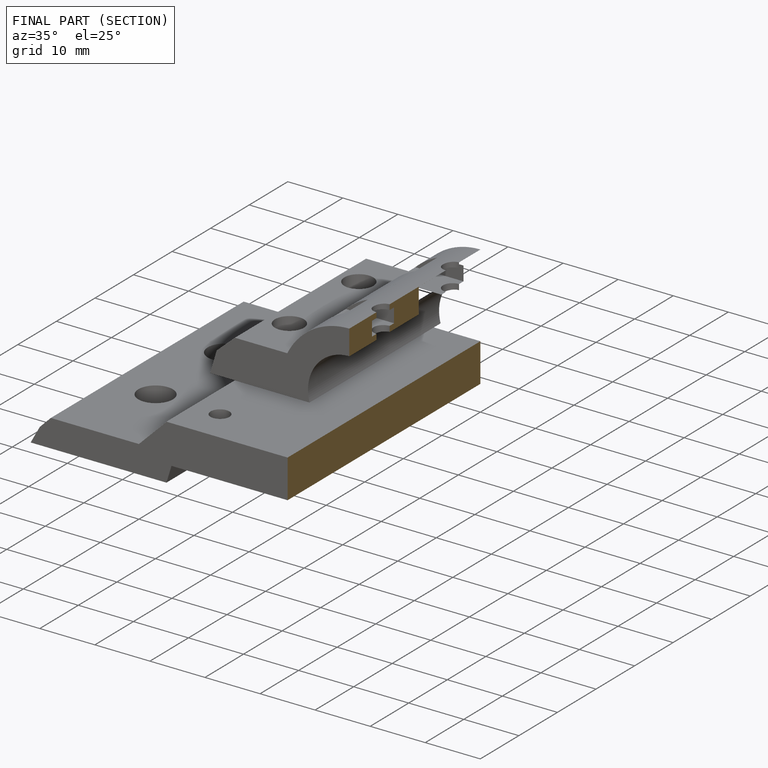
[diagram: finished part — half-section view (interior)]
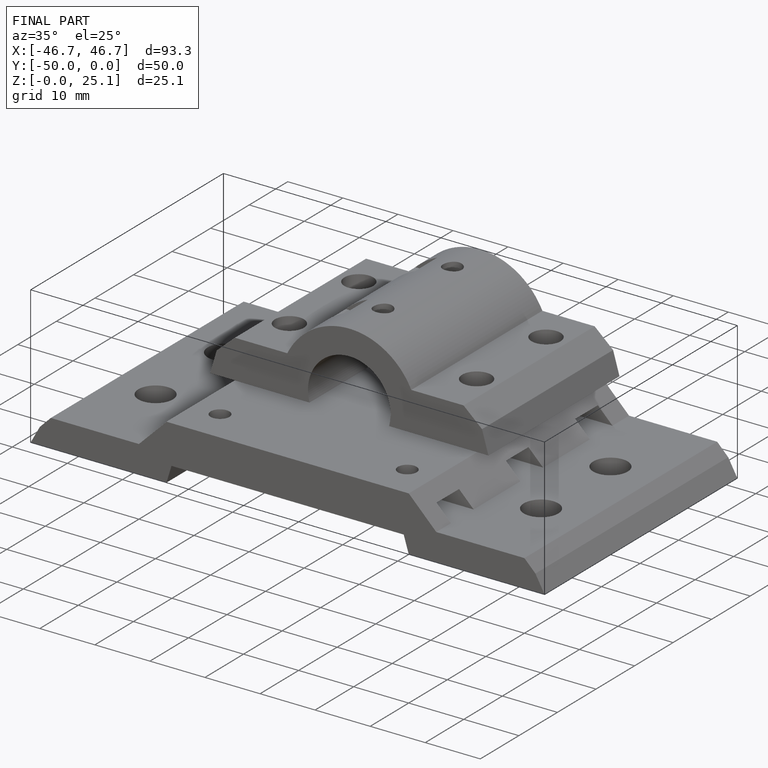
[diagram: finished part — iso view with bounding-box wireframe]
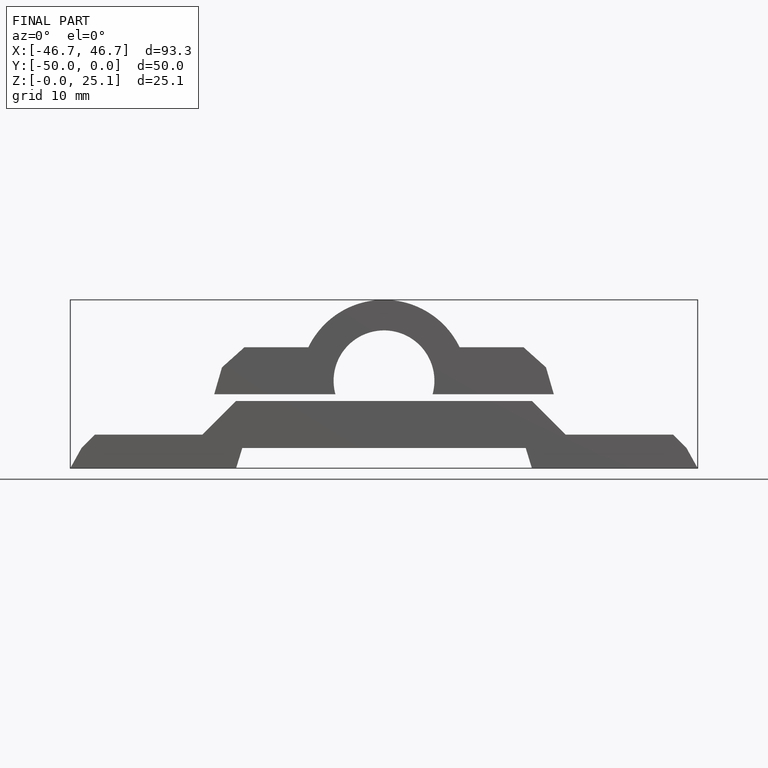
[diagram: finished part — front view with bounding-box wireframe]
